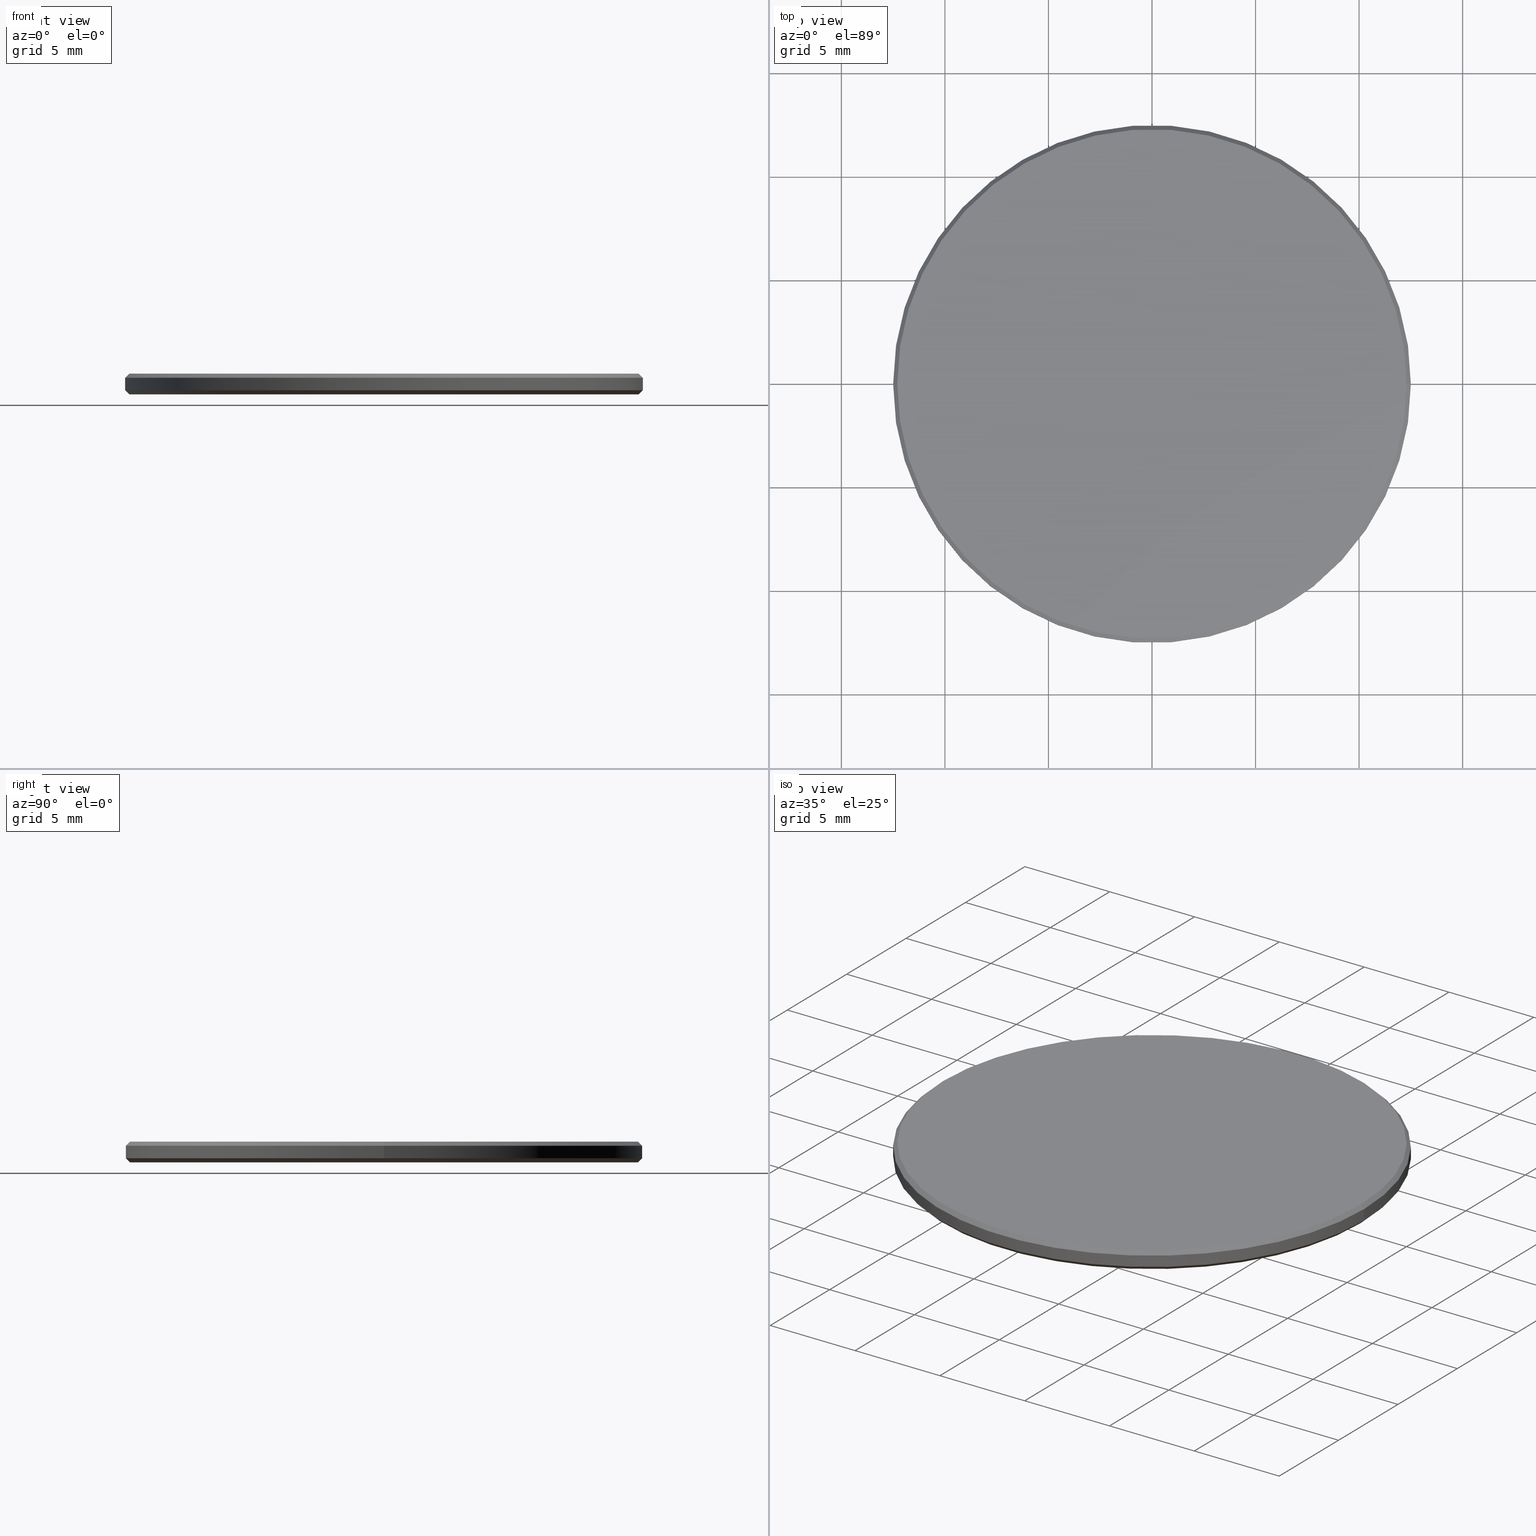
[diagram: canonical four-view strip — front | top / right | iso, engineering-drawing reading convention]
A machine part, canonical four-view strip (front | top / right | iso — engineering-drawing reading convention). The complete STEP part file that produces these views, byte-faithful:
ISO-10303-21;
HEADER;
FILE_DESCRIPTION (( 'STEP AP214' ),
    '1' );
FILE_NAME ('GNIF-1100-4250-D25.STEP',
    '2024-07-19T14:20:53',
    ( '' ),
    ( '' ),
    'SwSTEP 2.0',
    'SolidWorks 2022',
    '' );
FILE_SCHEMA (( 'AUTOMOTIVE_DESIGN' ));
ENDSEC;

DATA;
#1 = VERTEX_POINT ( 'NONE', #60 ) ;
#2 = PRODUCT_DEFINITION_FORMATION_WITH_SPECIFIED_SOURCE ( '�κ�', '', #113, .NOT_KNOWN. ) ;
#3 = AXIS2_PLACEMENT_3D ( 'NONE', #235, #106, #145 ) ;
#4 = VERTEX_POINT ( 'NONE', #64 ) ;
#5 = VERTEX_POINT ( 'NONE', #122 ) ;
#6 = DIRECTION ( 'NONE',  ( 1.000000000000000000, 0.000000000000000000, 0.000000000000000000 ) ) ;
#7 = EDGE_CURVE ( 'NONE', #11, #100, #212, .T. ) ;
#8 = APPLICATION_CONTEXT ( 'automotive_design' ) ;
#9 = CARTESIAN_POINT ( 'NONE',  ( 0.000000000000000000, 0.000000000000000000, 0.8000000000000029310 ) ) ;
#10 = PRODUCT_DEFINITION ( 'δ֪', '', #2, #111 ) ;
#11 = VERTEX_POINT ( 'NONE', #81 ) ;
#12 =( NAMED_UNIT ( * ) PLANE_ANGLE_UNIT ( ) SI_UNIT ( $, .RADIAN. ) );
#13 = LINE ( 'NONE', #87, #139 ) ;
#14 = ADVANCED_FACE ( 'NONE', ( #102 ), #224, .T. ) ;
#15 = FACE_OUTER_BOUND ( 'NONE', #98, .T. ) ;
#16 = DIRECTION ( 'NONE',  ( -0.000000000000000000, -0.000000000000000000, -1.000000000000000000 ) ) ;
#17 = DIRECTION ( 'NONE',  ( 0.000000000000000000, 0.000000000000000000, 1.000000000000000000 ) ) ;
#18 = DIRECTION ( 'NONE',  ( -0.000000000000000000, -0.000000000000000000, -1.000000000000000000 ) ) ;
#19 = DIRECTION ( 'NONE',  ( 0.000000000000000000, 0.000000000000000000, -1.000000000000000000 ) ) ;
#20 = APPLICATION_CONTEXT ( 'automotive_design' ) ;
#21 =( LENGTH_UNIT ( ) NAMED_UNIT ( * ) SI_UNIT ( .MILLI., .METRE. ) );
#22 = CIRCLE ( 'NONE', #104, 12.50000000000000000 ) ;
#23 = EDGE_LOOP ( 'NONE', ( #226, #114, #61, #187 ) ) ;
#24 = EDGE_CURVE ( 'NONE', #5, #4, #131, .T. ) ;
#25 = DIRECTION ( 'NONE',  ( 1.000000000000000000, 0.000000000000000000, 0.000000000000000000 ) ) ;
#26 = EDGE_LOOP ( 'NONE', ( #137, #190, #151, #118 ) ) ;
#27 = EDGE_LOOP ( 'NONE', ( #58, #172 ) ) ;
#28 = PRESENTATION_LAYER_ASSIGNMENT (  '', '', ( #39 ) ) ;
#29 = ADVANCED_FACE ( 'NONE', ( #77 ), #32, .T. ) ;
#30 = CARTESIAN_POINT ( 'NONE',  ( -12.29999999999999893, 0.000000000000000000, 1.000000000000000000 ) ) ;
#31 = EDGE_CURVE ( 'NONE', #173, #154, #169, .T. ) ;
#32 = CONICAL_SURFACE ( 'NONE', #86, 12.29999999999999893, 0.7853981633974612686 ) ;
#33 = CARTESIAN_POINT ( 'NONE',  ( 0.000000000000000000, 0.000000000000000000, 1.000000000000000000 ) ) ;
#34 = CARTESIAN_POINT ( 'NONE',  ( 12.29999999999999893, 1.506315562951244216E-15, 1.000000000000000000 ) ) ;
#35 = LINE ( 'NONE', #182, #192 ) ;
#36 =( NAMED_UNIT ( * ) SI_UNIT ( $, .STERADIAN. ) SOLID_ANGLE_UNIT ( ) );
#37 = PRESENTATION_LAYER_ASSIGNMENT (  '', '', ( #75 ) ) ;
#38 = PRODUCT_DEFINITION_SHAPE ( 'NONE', 'NONE',  #10 ) ;
#39 = STYLED_ITEM ( 'NONE', ( #110 ), #129 ) ;
#40 = EDGE_LOOP ( 'NONE', ( #76, #99, #209, #188 ) ) ;
#41 = ORIENTED_EDGE ( 'NONE', *, *, #204, .T. ) ;
#42 = DIRECTION ( 'NONE',  ( 0.000000000000000000, 0.000000000000000000, 1.000000000000000000 ) ) ;
#43 =( GEOMETRIC_REPRESENTATION_CONTEXT ( 3 ) GLOBAL_UNCERTAINTY_ASSIGNED_CONTEXT ( ( #205 ) ) GLOBAL_UNIT_ASSIGNED_CONTEXT ( ( #116, #94, #220 ) ) REPRESENTATION_CONTEXT ( 'NONE', 'WORKASPACE' ) );
#44 = VECTOR ( 'NONE', #68, 1000.000000000000114 ) ;
#45 = EDGE_LOOP ( 'NONE', ( #191, #123, #103, #232 ) ) ;
#46 = SURFACE_SIDE_STYLE ('',( #213 ) ) ;
#47 = EDGE_CURVE ( 'NONE', #1, #5, #50, .T. ) ;
#48 = CARTESIAN_POINT ( 'NONE',  ( 0.000000000000000000, 0.000000000000000000, 1.000000000000000000 ) ) ;
#49 = FILL_AREA_STYLE_COLOUR ( '', #208 ) ;
#50 = LINE ( 'NONE', #157, #44 ) ;
#51 = DIRECTION ( 'NONE',  ( 0.7071067811865566766, 8.659560562355045024E-17, -0.7071067811865383579 ) ) ;
#52 = CONICAL_SURFACE ( 'NONE', #63, 12.29999999999999893, 0.7853981633974612686 ) ;
#53 = DIRECTION ( 'NONE',  ( 1.000000000000000000, 0.000000000000000000, 0.000000000000000000 ) ) ;
#54 = DIRECTION ( 'NONE',  ( -0.000000000000000000, -0.000000000000000000, -1.000000000000000000 ) ) ;
#55 = ADVANCED_FACE ( 'NONE', ( #15 ), #177, .T. ) ;
#56 = MECHANICAL_DESIGN_GEOMETRIC_PRESENTATION_REPRESENTATION (  '', ( #75 ), #43 ) ;
#57 = AXIS2_PLACEMENT_3D ( 'NONE', #211, #42, #83 ) ;
#58 = ORIENTED_EDGE ( 'NONE', *, *, #227, .T. ) ;
#59 =( NAMED_UNIT ( * ) PLANE_ANGLE_UNIT ( ) SI_UNIT ( $, .RADIAN. ) );
#60 = CARTESIAN_POINT ( 'NONE',  ( -12.30000000000000249, 1.518562030942718164E-15, 0.000000000000000000 ) ) ;
#61 = ORIENTED_EDGE ( 'NONE', *, *, #167, .T. ) ;
#62 = CIRCLE ( 'NONE', #101, 12.30000000000000249 ) ;
#63 = AXIS2_PLACEMENT_3D ( 'NONE', #48, #143, #215 ) ;
#64 = CARTESIAN_POINT ( 'NONE',  ( 12.50000000000000000, 1.530808498934191521E-15, 0.1999999999999987899 ) ) ;
#65 = CARTESIAN_POINT ( 'NONE',  ( 0.000000000000000000, 0.000000000000000000, 0.1999999999999987899 ) ) ;
#66 = LINE ( 'NONE', #34, #193 ) ;
#67 = DIRECTION ( 'NONE',  ( 1.000000000000000000, 0.000000000000000000, 0.000000000000000000 ) ) ;
#68 = DIRECTION ( 'NONE',  ( -0.7071067811865474617, 8.659560562354932858E-17, 0.7071067811865474617 ) ) ;
#69 = DIRECTION ( 'NONE',  ( -0.000000000000000000, -0.000000000000000000, 1.000000000000000000 ) ) ;
#70 = CARTESIAN_POINT ( 'NONE',  ( 0.000000000000000000, 0.000000000000000000, 1.000000000000000000 ) ) ;
#71 = CIRCLE ( 'NONE', #196, 12.29999999999999893 ) ;
#72 = PRODUCT_CONTEXT ( 'NONE', #8, 'mechanical' ) ;
#73 = ADVANCED_FACE ( 'NONE', ( #126 ), #198, .F. ) ;
#74 = APPLICATION_PROTOCOL_DEFINITION ( 'draft international standard', 'automotive_design', 1998, #20 ) ;
#75 = STYLED_ITEM ( 'NONE', ( #162 ), #128 ) ;
#76 = ORIENTED_EDGE ( 'NONE', *, *, #79, .F. ) ;
#77 = FACE_OUTER_BOUND ( 'NONE', #117, .T. ) ;
#78 = DIRECTION ( 'NONE',  ( 1.000000000000000000, 0.000000000000000000, 0.000000000000000000 ) ) ;
#79 = EDGE_CURVE ( 'NONE', #154, #11, #66, .T. ) ;
#80 =( GEOMETRIC_REPRESENTATION_CONTEXT ( 3 ) GLOBAL_UNCERTAINTY_ASSIGNED_CONTEXT ( ( #93 ) ) GLOBAL_UNIT_ASSIGNED_CONTEXT ( ( #176, #12, #124 ) ) REPRESENTATION_CONTEXT ( 'NONE', 'WORKASPACE' ) );
#81 = CARTESIAN_POINT ( 'NONE',  ( 12.50000000000000000, 1.530808498934191521E-15, 0.8000000000000029310 ) ) ;
#82 = DIRECTION ( 'NONE',  ( -0.000000000000000000, -0.000000000000000000, -1.000000000000000000 ) ) ;
#83 = DIRECTION ( 'NONE',  ( 1.000000000000000000, 0.000000000000000000, 0.000000000000000000 ) ) ;
#84 = UNCERTAINTY_MEASURE_WITH_UNIT (LENGTH_MEASURE( 1.000000000000000082E-05 ), #21, 'distance_accuracy_value', 'NONE');
#85 = CIRCLE ( 'NONE', #179, 12.30000000000000249 ) ;
#86 = AXIS2_PLACEMENT_3D ( 'NONE', #152, #228, #138 ) ;
#87 = CARTESIAN_POINT ( 'NONE',  ( -12.29999999999999893, 0.000000000000000000, 1.000000000000000000 ) ) ;
#88 = DIRECTION ( 'NONE',  ( 0.000000000000000000, 0.000000000000000000, 1.000000000000000000 ) ) ;
#89 = DIRECTION ( 'NONE',  ( -0.000000000000000000, -0.000000000000000000, -1.000000000000000000 ) ) ;
#90 = LINE ( 'NONE', #239, #130 ) ;
#91 = SURFACE_SIDE_STYLE ('',( #133 ) ) ;
#92 = EDGE_CURVE ( 'NONE', #173, #100, #13, .T. ) ;
#93 = UNCERTAINTY_MEASURE_WITH_UNIT (LENGTH_MEASURE( 1.000000000000000082E-05 ), #176, 'distance_accuracy_value', 'NONE');
#94 =( NAMED_UNIT ( * ) PLANE_ANGLE_UNIT ( ) SI_UNIT ( $, .RADIAN. ) );
#95 = ORIENTED_EDGE ( 'NONE', *, *, #31, .T. ) ;
#96 = SURFACE_STYLE_USAGE ( .BOTH. , #91 ) ;
#97 = CLOSED_SHELL ( 'NONE', ( #194, #29, #136, #142, #55, #73, #121, #14 ) ) ;
#98 = EDGE_LOOP ( 'NONE', ( #95, #185 ) ) ;
#99 = ORIENTED_EDGE ( 'NONE', *, *, #31, .F. ) ;
#100 = VERTEX_POINT ( 'NONE', #234 ) ;
#101 = AXIS2_PLACEMENT_3D ( 'NONE', #144, #89, #238 ) ;
#102 = FACE_OUTER_BOUND ( 'NONE', #23, .T. ) ;
#103 = ORIENTED_EDGE ( 'NONE', *, *, #210, .T. ) ;
#104 = AXIS2_PLACEMENT_3D ( 'NONE', #237, #19, #203 ) ;
#105 = SURFACE_STYLE_USAGE ( .BOTH. , #46 ) ;
#106 = DIRECTION ( 'NONE',  ( 0.000000000000000000, 0.000000000000000000, 1.000000000000000000 ) ) ;
#107 = AXIS2_PLACEMENT_3D ( 'NONE', #132, #202, #186 ) ;
#108 = AXIS2_PLACEMENT_3D ( 'NONE', #9, #156, #78 ) ;
#109 = CYLINDRICAL_SURFACE ( 'NONE', #189, 12.50000000000000000 ) ;
#110 = PRESENTATION_STYLE_ASSIGNMENT (( #105 ) ) ;
#111 = PRODUCT_DEFINITION_CONTEXT ( 'detailed design', #20, 'design' ) ;
#112 = EDGE_CURVE ( 'NONE', #1, #207, #62, .T. ) ;
#113 = PRODUCT ( 'GNIF-1100-4250-D25', 'GNIF-1100-4250-D25', '', ( #72 ) ) ;
#114 = ORIENTED_EDGE ( 'NONE', *, *, #227, .F. ) ;
#115 = ORIENTED_EDGE ( 'NONE', *, *, #221, .T. ) ;
#116 =( LENGTH_UNIT ( ) NAMED_UNIT ( * ) SI_UNIT ( .MILLI., .METRE. ) );
#117 = EDGE_LOOP ( 'NONE', ( #230, #150, #195, #206 ) ) ;
#118 = ORIENTED_EDGE ( 'NONE', *, *, #167, .F. ) ;
#119 = EDGE_CURVE ( 'NONE', #154, #173, #71, .T. ) ;
#120 = EDGE_LOOP ( 'NONE', ( #134, #115, #41, #168 ) ) ;
#121 = ADVANCED_FACE ( 'NONE', ( #217 ), #52, .T. ) ;
#122 = CARTESIAN_POINT ( 'NONE',  ( -12.50000000000000000, 0.000000000000000000, 0.1999999999999987899 ) ) ;
#123 = ORIENTED_EDGE ( 'NONE', *, *, #7, .T. ) ;
#124 =( NAMED_UNIT ( * ) SI_UNIT ( $, .STERADIAN. ) SOLID_ANGLE_UNIT ( ) );
#125 = CARTESIAN_POINT ( 'NONE',  ( 12.29999999999999893, 1.518562030942717967E-15, 1.000000000000000000 ) ) ;
#126 = FACE_OUTER_BOUND ( 'NONE', #27, .T. ) ;
#127 = CARTESIAN_POINT ( 'NONE',  ( 0.000000000000000000, 0.000000000000000000, 0.1999999999999987899 ) ) ;
#128 = ADVANCED_BREP_SHAPE_REPRESENTATION ( 'GNIF-1100-4250-D25', ( #129, #107 ), #171 ) ;
#129 = MANIFOLD_SOLID_BREP ( '����1', #97 ) ;
#130 = VECTOR ( 'NONE', #54, 1000.000000000000000 ) ;
#131 = CIRCLE ( 'NONE', #231, 12.50000000000000000 ) ;
#132 = CARTESIAN_POINT ( 'NONE',  ( 0.000000000000000000, 0.000000000000000000, 0.000000000000000000 ) ) ;
#133 = SURFACE_STYLE_FILL_AREA ( #166 ) ;
#134 = ORIENTED_EDGE ( 'NONE', *, *, #175, .T. ) ;
#135 = AXIS2_PLACEMENT_3D ( 'NONE', #127, #222, #201 ) ;
#136 = ADVANCED_FACE ( 'NONE', ( #160 ), #109, .T. ) ;
#137 = ORIENTED_EDGE ( 'NONE', *, *, #112, .F. ) ;
#138 = DIRECTION ( 'NONE',  ( -1.000000000000000000, 0.000000000000000000, 0.000000000000000000 ) ) ;
#139 = VECTOR ( 'NONE', #158, 1000.000000000000000 ) ;
#140 = DIRECTION ( 'NONE',  ( -0.000000000000000000, -0.000000000000000000, 1.000000000000000000 ) ) ;
#141 = FACE_OUTER_BOUND ( 'NONE', #45, .T. ) ;
#142 = ADVANCED_FACE ( 'NONE', ( #141 ), #199, .T. ) ;
#143 = DIRECTION ( 'NONE',  ( 0.000000000000000000, 0.000000000000000000, -1.000000000000000000 ) ) ;
#144 = CARTESIAN_POINT ( 'NONE',  ( 0.000000000000000000, 0.000000000000000000, 0.000000000000000000 ) ) ;
#145 = DIRECTION ( 'NONE',  ( 1.000000000000000000, 0.000000000000000000, -0.000000000000000000 ) ) ;
#146 = VECTOR ( 'NONE', #200, 1000.000000000000114 ) ;
#147 = CARTESIAN_POINT ( 'NONE',  ( 0.000000000000000000, 0.000000000000000000, 0.000000000000000000 ) ) ;
#148 = AXIS2_PLACEMENT_3D ( 'NONE', #65, #140, #25 ) ;
#149 = APPLICATION_PROTOCOL_DEFINITION ( 'draft international standard', 'automotive_design', 1998, #8 ) ;
#150 = ORIENTED_EDGE ( 'NONE', *, *, #79, .T. ) ;
#151 = ORIENTED_EDGE ( 'NONE', *, *, #204, .F. ) ;
#152 = CARTESIAN_POINT ( 'NONE',  ( 0.000000000000000000, 0.000000000000000000, 1.000000000000000000 ) ) ;
#153 = DIRECTION ( 'NONE',  ( -0.000000000000000000, -0.000000000000000000, 1.000000000000000000 ) ) ;
#154 = VERTEX_POINT ( 'NONE', #125 ) ;
#155 = AXIS2_PLACEMENT_3D ( 'NONE', #33, #16, #214 ) ;
#156 = DIRECTION ( 'NONE',  ( 0.000000000000000000, 0.000000000000000000, -1.000000000000000000 ) ) ;
#157 = CARTESIAN_POINT ( 'NONE',  ( -12.50000000000000000, 1.530808498934191521E-15, 0.1999999999999987899 ) ) ;
#158 = DIRECTION ( 'NONE',  ( -0.7071067811865566766, 0.000000000000000000, -0.7071067811865383579 ) ) ;
#159 = COLOUR_RGB ( '',1.000000000000000000, 1.000000000000000000, 1.000000000000000000 ) ;
#160 = FACE_OUTER_BOUND ( 'NONE', #120, .T. ) ;
#161 = FACE_OUTER_BOUND ( 'NONE', #26, .T. ) ;
#162 = PRESENTATION_STYLE_ASSIGNMENT (( #96 ) ) ;
#163 = FILL_AREA_STYLE ('',( #49 ) ) ;
#164 = CARTESIAN_POINT ( 'NONE',  ( 12.30000000000000249, 0.000000000000000000, 0.000000000000000000 ) ) ;
#165 = MECHANICAL_DESIGN_GEOMETRIC_PRESENTATION_REPRESENTATION (  '', ( #39 ), #80 ) ;
#166 = FILL_AREA_STYLE ('',( #225 ) ) ;
#167 = EDGE_CURVE ( 'NONE', #207, #4, #236, .T. ) ;
#168 = ORIENTED_EDGE ( 'NONE', *, *, #210, .F. ) ;
#169 = CIRCLE ( 'NONE', #57, 12.29999999999999893 ) ;
#170 = CARTESIAN_POINT ( 'NONE',  ( 0.000000000000000000, 0.000000000000000000, 0.1999999999999987899 ) ) ;
#171 =( GEOMETRIC_REPRESENTATION_CONTEXT ( 3 ) GLOBAL_UNCERTAINTY_ASSIGNED_CONTEXT ( ( #84 ) ) GLOBAL_UNIT_ASSIGNED_CONTEXT ( ( #21, #59, #36 ) ) REPRESENTATION_CONTEXT ( 'NONE', 'WORKASPACE' ) );
#172 = ORIENTED_EDGE ( 'NONE', *, *, #112, .T. ) ;
#173 = VERTEX_POINT ( 'NONE', #30 ) ;
#174 = AXIS2_PLACEMENT_3D ( 'NONE', #218, #69, #53 ) ;
#175 = EDGE_CURVE ( 'NONE', #100, #11, #22, .T. ) ;
#176 =( LENGTH_UNIT ( ) NAMED_UNIT ( * ) SI_UNIT ( .MILLI., .METRE. ) );
#177 = PLANE ( 'NONE',  #180 ) ;
#178 = DIRECTION ( 'NONE',  ( 1.000000000000000000, 0.000000000000000000, -0.000000000000000000 ) ) ;
#179 = AXIS2_PLACEMENT_3D ( 'NONE', #147, #184, #183 ) ;
#180 = AXIS2_PLACEMENT_3D ( 'NONE', #181, #17, #178 ) ;
#181 = CARTESIAN_POINT ( 'NONE',  ( 0.000000000000000000, 0.000000000000000000, 1.000000000000000000 ) ) ;
#182 = CARTESIAN_POINT ( 'NONE',  ( -12.50000000000000000, 0.000000000000000000, 1.000000000000000000 ) ) ;
#183 = DIRECTION ( 'NONE',  ( 1.000000000000000000, 0.000000000000000000, 0.000000000000000000 ) ) ;
#184 = DIRECTION ( 'NONE',  ( -0.000000000000000000, -0.000000000000000000, -1.000000000000000000 ) ) ;
#185 = ORIENTED_EDGE ( 'NONE', *, *, #119, .T. ) ;
#186 = DIRECTION ( 'NONE',  ( 1.000000000000000000, 0.000000000000000000, 0.000000000000000000 ) ) ;
#187 = ORIENTED_EDGE ( 'NONE', *, *, #24, .F. ) ;
#188 = ORIENTED_EDGE ( 'NONE', *, *, #7, .F. ) ;
#189 = AXIS2_PLACEMENT_3D ( 'NONE', #216, #82, #233 ) ;
#190 = ORIENTED_EDGE ( 'NONE', *, *, #47, .T. ) ;
#191 = ORIENTED_EDGE ( 'NONE', *, *, #221, .F. ) ;
#192 = VECTOR ( 'NONE', #18, 1000.000000000000000 ) ;
#193 = VECTOR ( 'NONE', #51, 1000.000000000000000 ) ;
#194 = ADVANCED_FACE ( 'NONE', ( #161 ), #219, .T. ) ;
#195 = ORIENTED_EDGE ( 'NONE', *, *, #175, .F. ) ;
#196 = AXIS2_PLACEMENT_3D ( 'NONE', #70, #88, #67 ) ;
#197 = CARTESIAN_POINT ( 'NONE',  ( 12.50000000000000000, 0.000000000000000000, 0.1999999999999987899 ) ) ;
#198 = PLANE ( 'NONE',  #3 ) ;
#199 = CYLINDRICAL_SURFACE ( 'NONE', #155, 12.50000000000000000 ) ;
#200 = DIRECTION ( 'NONE',  ( 0.7071067811865474617, 0.000000000000000000, 0.7071067811865474617 ) ) ;
#201 = DIRECTION ( 'NONE',  ( 1.000000000000000000, 0.000000000000000000, 0.000000000000000000 ) ) ;
#202 = DIRECTION ( 'NONE',  ( 0.000000000000000000, 0.000000000000000000, 1.000000000000000000 ) ) ;
#203 = DIRECTION ( 'NONE',  ( 1.000000000000000000, 0.000000000000000000, 0.000000000000000000 ) ) ;
#204 = EDGE_CURVE ( 'NONE', #4, #5, #240, .T. ) ;
#205 = UNCERTAINTY_MEASURE_WITH_UNIT (LENGTH_MEASURE( 1.000000000000000082E-05 ), #116, 'distance_accuracy_value', 'NONE');
#206 = ORIENTED_EDGE ( 'NONE', *, *, #92, .F. ) ;
#207 = VERTEX_POINT ( 'NONE', #164 ) ;
#208 = COLOUR_RGB ( '',1.000000000000000000, 1.000000000000000000, 1.000000000000000000 ) ;
#209 = ORIENTED_EDGE ( 'NONE', *, *, #92, .T. ) ;
#210 = EDGE_CURVE ( 'NONE', #100, #5, #35, .T. ) ;
#211 = CARTESIAN_POINT ( 'NONE',  ( 0.000000000000000000, 0.000000000000000000, 1.000000000000000000 ) ) ;
#212 = CIRCLE ( 'NONE', #108, 12.50000000000000000 ) ;
#213 = SURFACE_STYLE_FILL_AREA ( #163 ) ;
#214 = DIRECTION ( 'NONE',  ( -1.000000000000000000, 0.000000000000000000, 0.000000000000000000 ) ) ;
#215 = DIRECTION ( 'NONE',  ( -1.000000000000000000, 0.000000000000000000, 0.000000000000000000 ) ) ;
#216 = CARTESIAN_POINT ( 'NONE',  ( 0.000000000000000000, 0.000000000000000000, 1.000000000000000000 ) ) ;
#217 = FACE_OUTER_BOUND ( 'NONE', #40, .T. ) ;
#218 = CARTESIAN_POINT ( 'NONE',  ( 0.000000000000000000, 0.000000000000000000, 0.1999999999999987899 ) ) ;
#219 = CONICAL_SURFACE ( 'NONE', #174, 12.50000000000000000, 0.7853981633974482790 ) ;
#220 =( NAMED_UNIT ( * ) SI_UNIT ( $, .STERADIAN. ) SOLID_ANGLE_UNIT ( ) );
#221 = EDGE_CURVE ( 'NONE', #11, #4, #90, .T. ) ;
#222 = DIRECTION ( 'NONE',  ( -0.000000000000000000, -0.000000000000000000, 1.000000000000000000 ) ) ;
#223 = SHAPE_DEFINITION_REPRESENTATION ( #38, #128 ) ;
#224 = CONICAL_SURFACE ( 'NONE', #148, 12.50000000000000000, 0.7853981633974482790 ) ;
#225 = FILL_AREA_STYLE_COLOUR ( '', #159 ) ;
#226 = ORIENTED_EDGE ( 'NONE', *, *, #47, .F. ) ;
#227 = EDGE_CURVE ( 'NONE', #207, #1, #85, .T. ) ;
#228 = DIRECTION ( 'NONE',  ( 0.000000000000000000, 0.000000000000000000, -1.000000000000000000 ) ) ;
#229 = PRODUCT_RELATED_PRODUCT_CATEGORY ( 'part', '', ( #113 ) ) ;
#230 = ORIENTED_EDGE ( 'NONE', *, *, #119, .F. ) ;
#231 = AXIS2_PLACEMENT_3D ( 'NONE', #170, #153, #6 ) ;
#232 = ORIENTED_EDGE ( 'NONE', *, *, #24, .T. ) ;
#233 = DIRECTION ( 'NONE',  ( -1.000000000000000000, 0.000000000000000000, 0.000000000000000000 ) ) ;
#234 = CARTESIAN_POINT ( 'NONE',  ( -12.50000000000000000, 0.000000000000000000, 0.8000000000000029310 ) ) ;
#235 = CARTESIAN_POINT ( 'NONE',  ( 0.000000000000000000, 0.000000000000000000, 0.000000000000000000 ) ) ;
#236 = LINE ( 'NONE', #197, #146 ) ;
#237 = CARTESIAN_POINT ( 'NONE',  ( 0.000000000000000000, 0.000000000000000000, 0.8000000000000029310 ) ) ;
#238 = DIRECTION ( 'NONE',  ( 1.000000000000000000, 0.000000000000000000, 0.000000000000000000 ) ) ;
#239 = CARTESIAN_POINT ( 'NONE',  ( 12.50000000000000000, 1.530808498934191521E-15, 1.000000000000000000 ) ) ;
#240 = CIRCLE ( 'NONE', #135, 12.50000000000000000 ) ;
ENDSEC;
END-ISO-10303-21;
